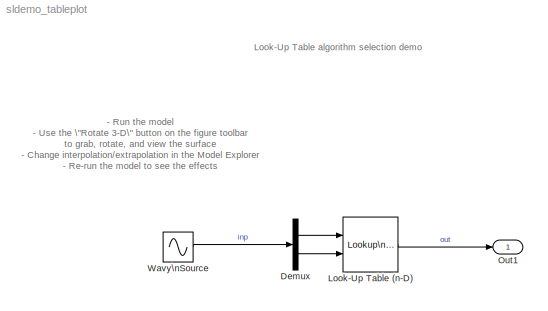
MODEL sldemo_tableplot
KIND model
CONFIG InitFcn = mh = get_param('sldemo_tableplot','object'); \nluth = get_param('sldemo_tableplot/Look-Up Table (n-D)','object'); \nhda.view(mh);\nhda.view(luth);
CONFIG PreLoadFcn = load sldemo_tableplot_data;\ntabfig = figure;\nhda = daexplr;\nset(hda, 'position', [6 458 1077 544] );\nset( tabfig, 'Position', [550, 415, 674, 510] );\n
CONFIG StopFcn = sldemo_tableplot_comet(luth,logsOut);
BLOCK [Demux] Demux
  DisplayOption = bar
  Outputs = 2
  Ports = [1, 2]
BLOCK [Reference] Look-Up Table (n-D)  REF=simulink/Lookup\nTables/Lookup\nTable (n-D)
  AttributesFormatString = interpolation: %<interpMethod>\\nextrapolation: %<extrapMethod>
  Ports = [2, 1]
  SourceBlock = simulink/Lookup\nTables/Lookup\nTable (n-D)
  SourceType = LookupNDInterp
  bp1 = one
  bp2 = two
  bp3 = [1:3]
  bp4 = [1:3]
  bpcell = { [1:3], [1:3] }
  cacheBpFlag = off
  explicitNumDims = 2
  extrapMethod = Linear
  interpMethod = Linear
  numDimsPopupSelect = 2
  rangeErrorMode = None
  searchMode = Binary Search
  tableData = tab'
  vectorInputFlag = off
BLOCK [Outport] Out1
  BusOutputAsStruct = off
  IconDisplay = Port number
BLOCK [Sin] Wavy\nSource
  Amplitude = [22.5, 25]
  Bias = [22.5, 45]
  Frequency = [1.714, 1]
  Phase = [pi, 0]
  Ports = [0, 1]
  SampleTime = 0
  SineType = Time based
ANNOTATION (root): - Run the model\n- Use the \"Rotate 3-D\" button on the figure toolbar \n to grab, rotate, and view the surface\n- Change interpolation/extrapolation in the Model Explorer\n- Re-run the model to see the effects
ANNOTATION (root): Look-Up Table algorithm selection demo
LINE Demux:1 -> Look-Up Table (n-D):1
LINE Demux:2 -> Look-Up Table (n-D):2
LINE Look-Up Table (n-D):1 -> Out1:1
LINE Wavy\nSource:1 -> Demux:1
